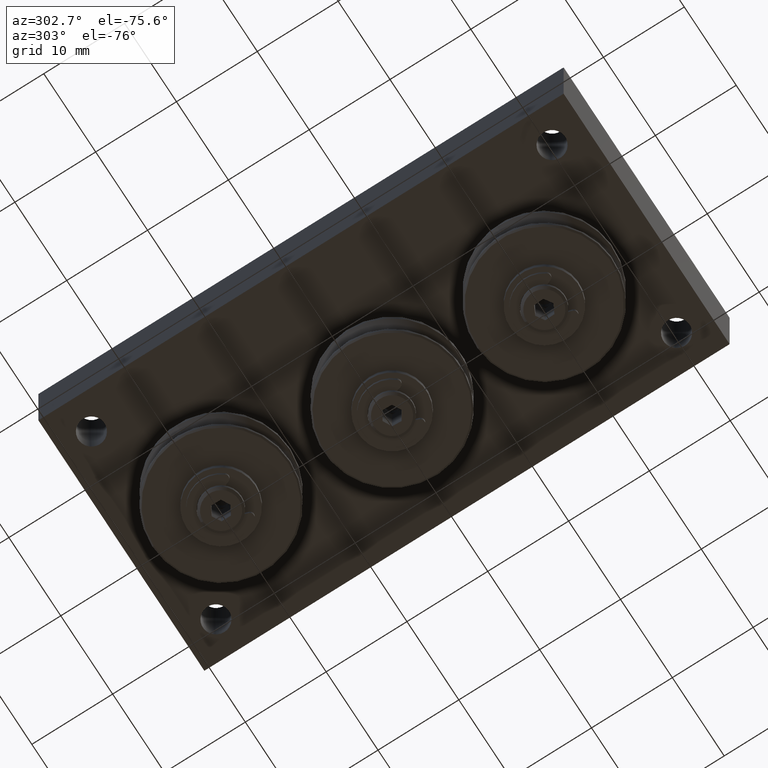
[diagram: clean part render]
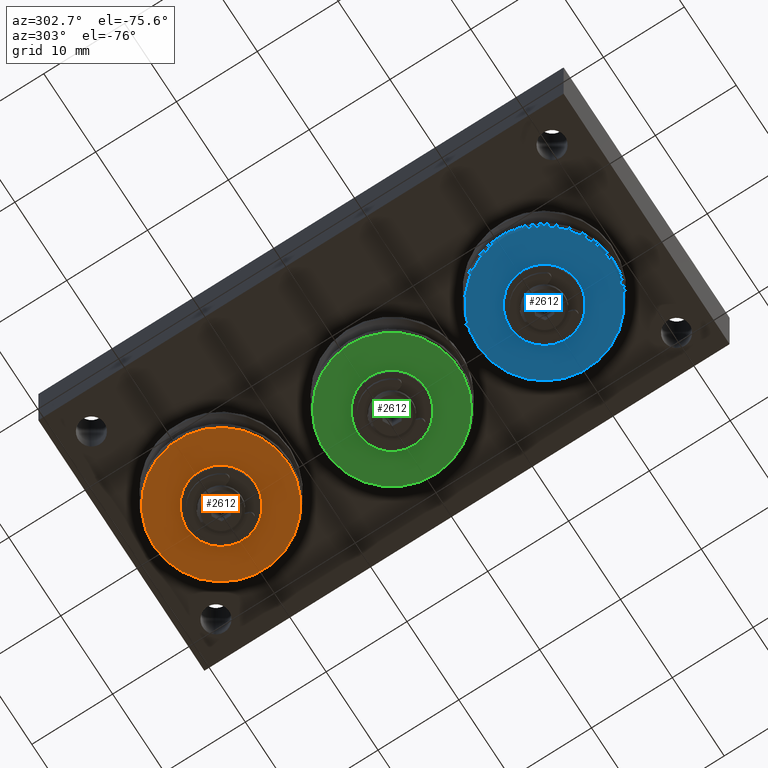
[diagram: same view with three faces highlighted in distinct colors, each labeled with its STEP entity id]
A machine part, auxiliary view with three faces highlighted in distinct colors.
Their STEP definitions:

[orange] entity #2612 — the highlighted planar face has unit normal (-0, 0, -1).
#139=FACE_BOUND('',#584,.T.);
#214=PLANE('',#3061);
#392=FACE_OUTER_BOUND('',#583,.T.);
#583=EDGE_LOOP('',(#2241));
#584=EDGE_LOOP('',(#2242));
#1131=CIRCLE('',#3060,8.3);
#1132=CIRCLE('',#3062,4.25);
#1335=VERTEX_POINT('',#4538);
#1336=VERTEX_POINT('',#4542);
#1649=EDGE_CURVE('',#1335,#1335,#1131,.T.);
#1650=EDGE_CURVE('',#1336,#1336,#1132,.T.);
#2241=ORIENTED_EDGE('',*,*,#1649,.F.);
#2242=ORIENTED_EDGE('',*,*,#1650,.T.);
#2612=ADVANCED_FACE('',(#392,#139),#214,.T.);
#3060=AXIS2_PLACEMENT_3D('',#4540,#3740,#3741);
#3061=AXIS2_PLACEMENT_3D('',#4541,#3742,#3743);
#3062=AXIS2_PLACEMENT_3D('',#4543,#3744,#3745);
#3740=DIRECTION('center_axis',(1.,0.,0.));
#3741=DIRECTION('ref_axis',(0.,-1.,0.));
#3742=DIRECTION('center_axis',(-1.,0.,0.));
#3743=DIRECTION('ref_axis',(0.,0.,1.));
#3744=DIRECTION('center_axis',(1.,0.,0.));
#3745=DIRECTION('ref_axis',(0.,1.,0.));
#4538=CARTESIAN_POINT('',(-3.,8.3,1.0164568432923E-15));
#4540=CARTESIAN_POINT('Origin',(-3.,0.,0.));
#4541=CARTESIAN_POINT('Origin',(-3.,6.375,0.));
#4542=CARTESIAN_POINT('',(-3.,-4.25,-5.20474889637625E-16));
#4543=CARTESIAN_POINT('Origin',(-3.,0.,0.));

[blue] entity #2612 — the highlighted planar face has unit normal (0, 0, -1).
#139=FACE_BOUND('',#584,.T.);
#214=PLANE('',#3061);
#392=FACE_OUTER_BOUND('',#583,.T.);
#583=EDGE_LOOP('',(#2241));
#584=EDGE_LOOP('',(#2242));
#1131=CIRCLE('',#3060,8.3);
#1132=CIRCLE('',#3062,4.25);
#1335=VERTEX_POINT('',#4538);
#1336=VERTEX_POINT('',#4542);
#1649=EDGE_CURVE('',#1335,#1335,#1131,.T.);
#1650=EDGE_CURVE('',#1336,#1336,#1132,.T.);
#2241=ORIENTED_EDGE('',*,*,#1649,.F.);
#2242=ORIENTED_EDGE('',*,*,#1650,.T.);
#2612=ADVANCED_FACE('',(#392,#139),#214,.T.);
#3060=AXIS2_PLACEMENT_3D('',#4540,#3740,#3741);
#3061=AXIS2_PLACEMENT_3D('',#4541,#3742,#3743);
#3062=AXIS2_PLACEMENT_3D('',#4543,#3744,#3745);
#3740=DIRECTION('center_axis',(1.,0.,0.));
#3741=DIRECTION('ref_axis',(0.,-1.,0.));
#3742=DIRECTION('center_axis',(-1.,0.,0.));
#3743=DIRECTION('ref_axis',(0.,0.,1.));
#3744=DIRECTION('center_axis',(1.,0.,0.));
#3745=DIRECTION('ref_axis',(0.,1.,0.));
#4538=CARTESIAN_POINT('',(-3.,8.3,1.0164568432923E-15));
#4540=CARTESIAN_POINT('Origin',(-3.,0.,0.));
#4541=CARTESIAN_POINT('Origin',(-3.,6.375,0.));
#4542=CARTESIAN_POINT('',(-3.,-4.25,-5.20474889637625E-16));
#4543=CARTESIAN_POINT('Origin',(-3.,0.,0.));

[green] entity #2612 — the highlighted planar face has unit normal (0, -0, -1).
#139=FACE_BOUND('',#584,.T.);
#214=PLANE('',#3061);
#392=FACE_OUTER_BOUND('',#583,.T.);
#583=EDGE_LOOP('',(#2241));
#584=EDGE_LOOP('',(#2242));
#1131=CIRCLE('',#3060,8.3);
#1132=CIRCLE('',#3062,4.25);
#1335=VERTEX_POINT('',#4538);
#1336=VERTEX_POINT('',#4542);
#1649=EDGE_CURVE('',#1335,#1335,#1131,.T.);
#1650=EDGE_CURVE('',#1336,#1336,#1132,.T.);
#2241=ORIENTED_EDGE('',*,*,#1649,.F.);
#2242=ORIENTED_EDGE('',*,*,#1650,.T.);
#2612=ADVANCED_FACE('',(#392,#139),#214,.T.);
#3060=AXIS2_PLACEMENT_3D('',#4540,#3740,#3741);
#3061=AXIS2_PLACEMENT_3D('',#4541,#3742,#3743);
#3062=AXIS2_PLACEMENT_3D('',#4543,#3744,#3745);
#3740=DIRECTION('center_axis',(1.,0.,0.));
#3741=DIRECTION('ref_axis',(0.,-1.,0.));
#3742=DIRECTION('center_axis',(-1.,0.,0.));
#3743=DIRECTION('ref_axis',(0.,0.,1.));
#3744=DIRECTION('center_axis',(1.,0.,0.));
#3745=DIRECTION('ref_axis',(0.,1.,0.));
#4538=CARTESIAN_POINT('',(-3.,8.3,1.0164568432923E-15));
#4540=CARTESIAN_POINT('Origin',(-3.,0.,0.));
#4541=CARTESIAN_POINT('Origin',(-3.,6.375,0.));
#4542=CARTESIAN_POINT('',(-3.,-4.25,-5.20474889637625E-16));
#4543=CARTESIAN_POINT('Origin',(-3.,0.,0.));